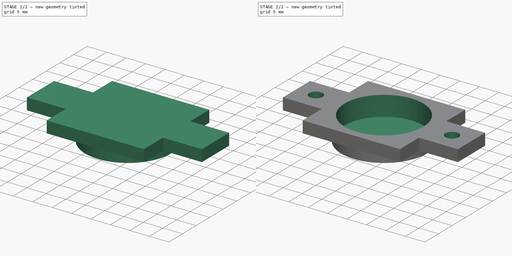
[diagram: build sequence overview — one tinted view per stage of 2, left to right]
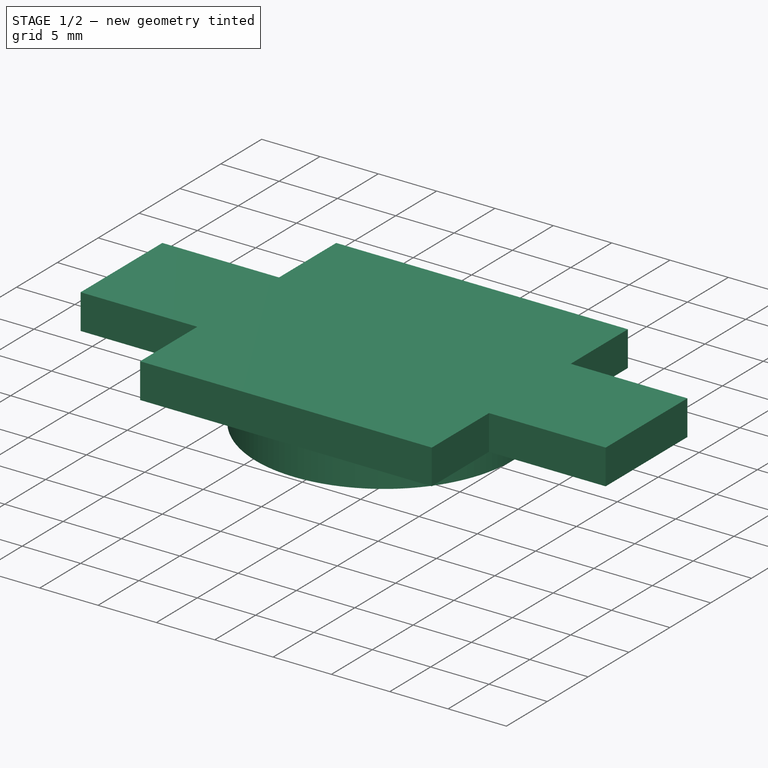
[diagram: stage 1 of 2 — iso view after this stage's code; geometry added in this stage tinted green]
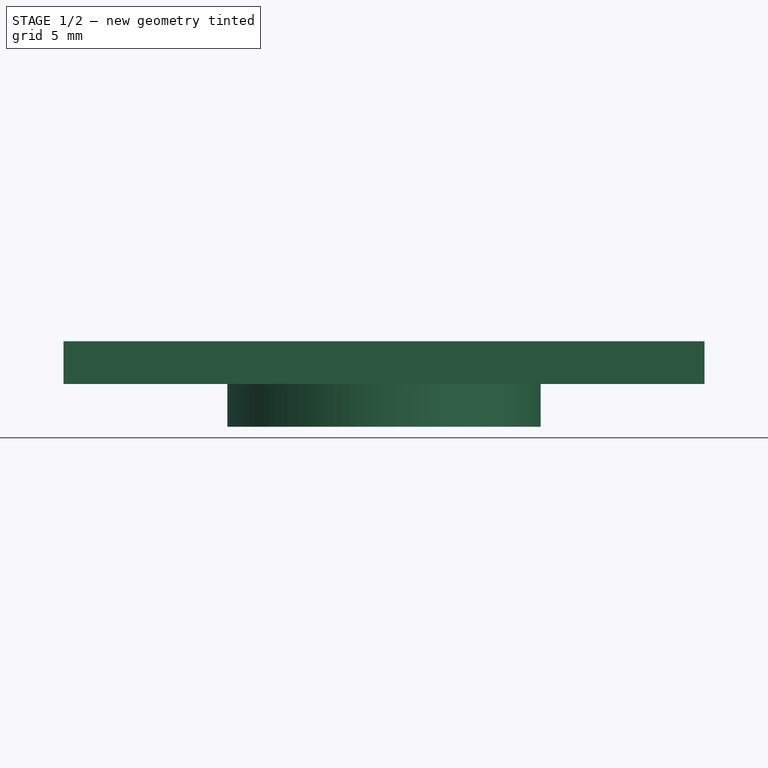
[diagram: stage 1 of 2 — front view after this stage's code; geometry added in this stage tinted green]
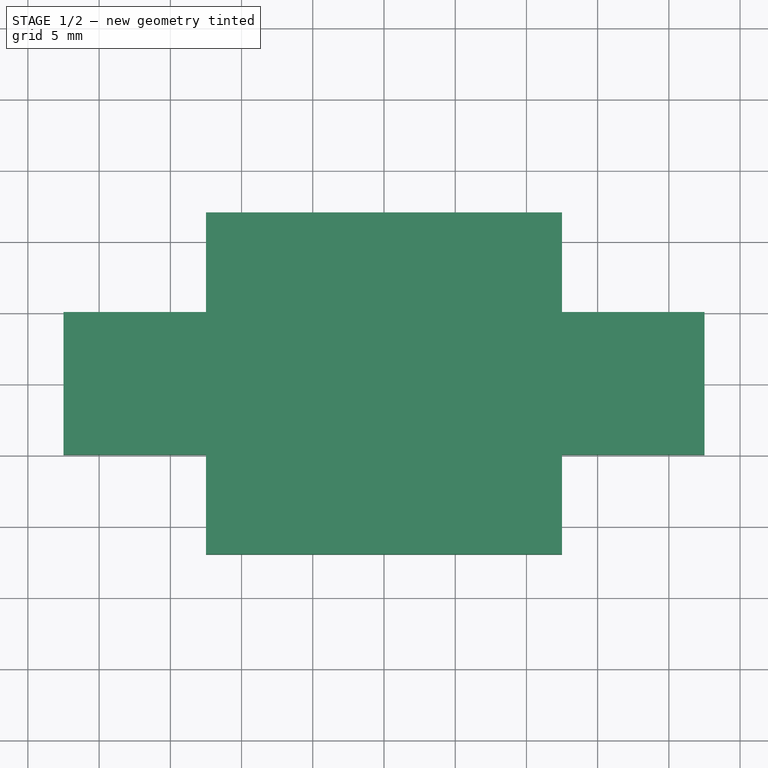
[diagram: stage 1 of 2 — top view after this stage's code; geometry added in this stage tinted green]
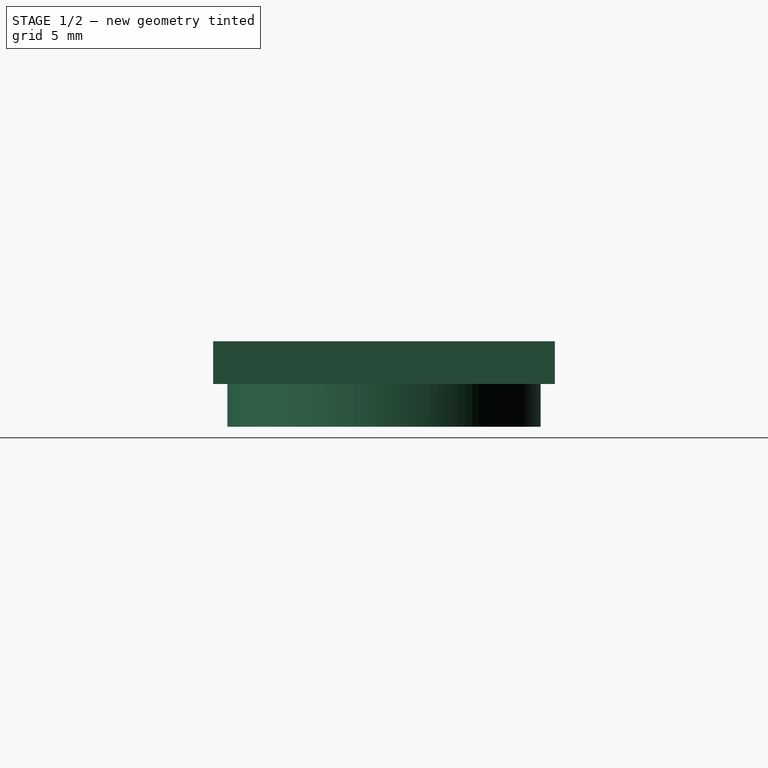
[diagram: stage 1 of 2 — right view after this stage's code; geometry added in this stage tinted green]
FCSTD DOCUMENT  (FreeCAD 0.18.4R)
Label: magnet_support_main_arm
License: All rights reserved
LicenseURL: http://en.wikipedia.org/wiki/All_rights_reserved
objects: Sketcher::SketchObject×4, PartDesign::Pad×2, PartDesign::Pocket×2, PartDesign::Body×1
note: 13 computed .brp shape members not serialized (recipe doc carries the construction recipe); baked Part::Feature solids carry a one-line shape summary decoded from their .brp

FEATURE [Sketcher::SketchObject] Sketch
  MapMode = 5
  Support = -> [XY_Plane]
  sketch-geometry (12):
    g0: LineSegment StartX=-12.5 StartY=-5 StartZ=0 EndX=-22.5 EndY=-5 EndZ=0
    g1: LineSegment StartX=-22.5 StartY=-5 StartZ=0 EndX=-22.5 EndY=5 EndZ=0
    g2: LineSegment StartX=-22.5 StartY=5 StartZ=0 EndX=-12.5 EndY=5 EndZ=0
    g3: LineSegment StartX=-12.5 StartY=5 StartZ=0 EndX=-12.5 EndY=12 EndZ=0
    g4: LineSegment StartX=-12.5 StartY=12 StartZ=0 EndX=12.5 EndY=12 EndZ=0
    g5: LineSegment StartX=12.5 StartY=12 StartZ=0 EndX=12.5 EndY=5 EndZ=0
    g6: LineSegment StartX=12.5 StartY=5 StartZ=0 EndX=22.5 EndY=5 EndZ=0
    g7: LineSegment StartX=22.5 StartY=5 StartZ=0 EndX=22.5 EndY=-5 EndZ=0
    g8: LineSegment StartX=22.5 StartY=-5 StartZ=0 EndX=12.5 EndY=-5 EndZ=0
    g9: LineSegment StartX=12.5 StartY=-5 StartZ=0 EndX=12.5 EndY=-12 EndZ=0
    g10: LineSegment StartX=12.5 StartY=-12 StartZ=0 EndX=-12.5 EndY=-12 EndZ=0
    g11: LineSegment StartX=-12.5 StartY=-12 StartZ=0 EndX=-12.5 EndY=-5 EndZ=0
  constraints (33):
    c: Horizontal(g0)
    c: Coincident(g0,g1)
    c: Coincident(g1,g2)
    c: Coincident(g2,g3)
    c: Vertical(g3)
    c: Coincident(g3,g4)
    c: Horizontal(g4)
    c: Coincident(g4,g5)
    c: Coincident(g5,g6)
    c: Horizontal(g6)
    c: Coincident(g6,g7)
    c: Vertical(g7)
    c: Coincident(g7,g8)
    c: Horizontal(g8)
    c: Coincident(g8,g9)
    c: Coincident(g9,g10)
    c: Horizontal(g10)
    c: Coincident(g10,g11)
    c: Coincident(g11,g0)
    c: Vertical(g11)
    c: Parallel(g2,g-1)
    c: DistanceY(g1,g1) = 10
    c: Symmetric(g1,g0,g-1)
    c: DistanceX(g2,g2) = 10
    c: Symmetric(g2,g5,g-2)
    c: Symmetric(g0,g8,g-2)
    c: Parallel(g11,g9)
    c: Vertical(g0,g2)
    c: Parallel(g5,g3)
    c: DistanceX(g6,g6) = 10
    c: DistanceX(g4,g4) = 25
    c: DistanceY(g3,g3) = 7
    c: DistanceY(g11,g11) = 7
FEATURE [PartDesign::Pad] Pad
  Length = 3
  Length2 = 100
  Profile = -> Sketch
  Type = 0
FEATURE [Sketcher::SketchObject] Sketch001
  MapMode = 5
  Placement = pos=(0,0,0) rot=(1,0,0;3.14159rad)
  Support = -> [Pad]
  sketch-geometry (1):
    g0: Circle CenterX=0 CenterY=0 CenterZ=0 NormalX=0 NormalY=0 NormalZ=1 AngleXU=0 Radius=11
  constraints (2):
    c: Coincident(g0,g-1)
    c: Radius(g0) = 11
FEATURE [PartDesign::Pad] Pad001
  BaseFeature = -> Pad
  Length = 3
  Length2 = 100
  Profile = -> Sketch001
  Type = 0
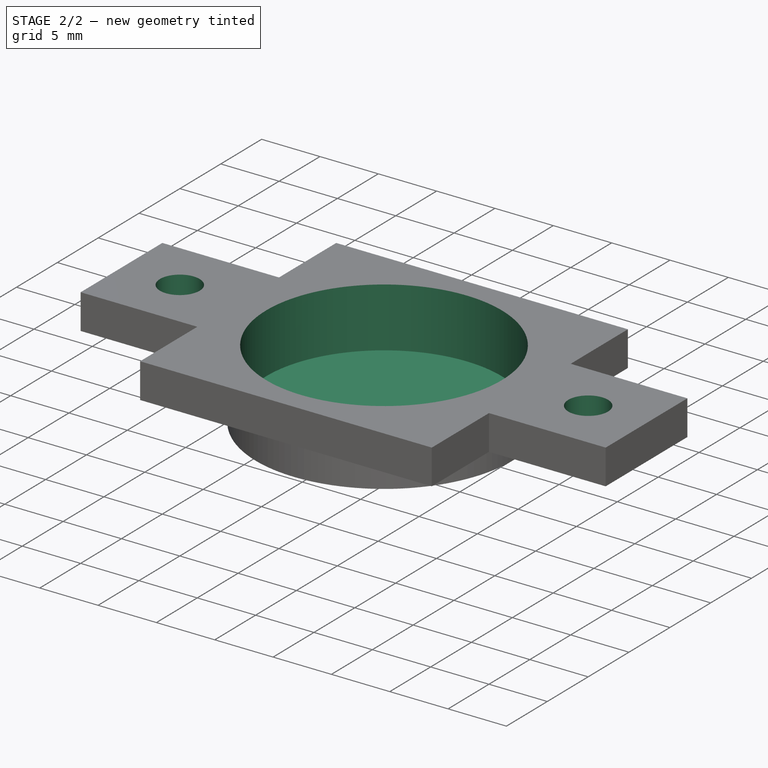
[diagram: stage 2 of 2 — iso view after this stage's code; geometry added in this stage tinted green]
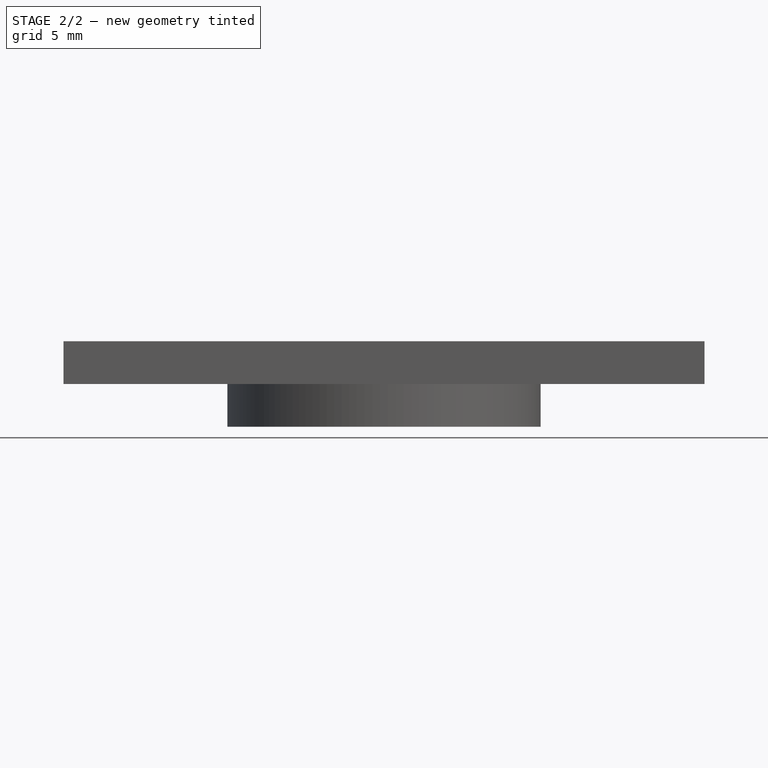
[diagram: stage 2 of 2 — front view after this stage's code; geometry added in this stage tinted green]
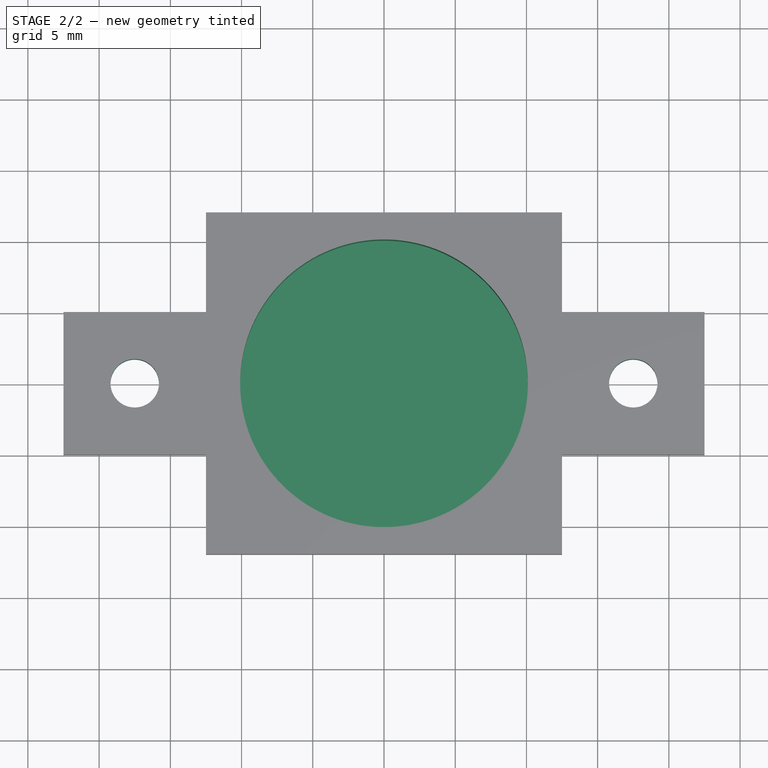
[diagram: stage 2 of 2 — top view after this stage's code; geometry added in this stage tinted green]
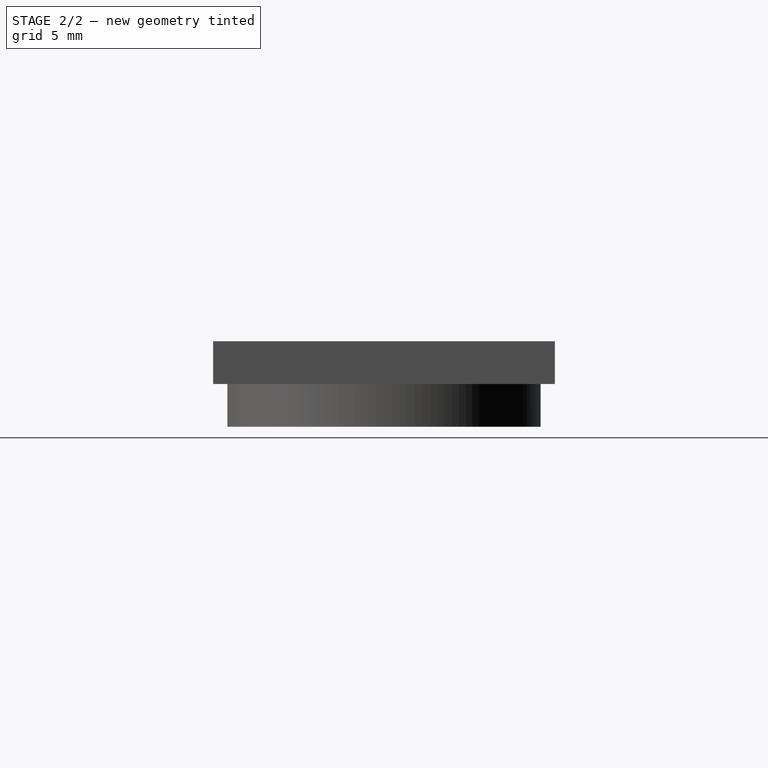
[diagram: stage 2 of 2 — right view after this stage's code; geometry added in this stage tinted green]
FEATURE [Sketcher::SketchObject] Sketch002
  MapMode = 5
  Placement = pos=(0,0,3) rot=(0,0,1;0rad)
  Support = -> [Pad001]
  sketch-geometry (1):
    g0: Circle CenterX=0 CenterY=0 CenterZ=0 NormalX=0 NormalY=0 NormalZ=1 AngleXU=0 Radius=10.1
  constraints (2):
    c: Coincident(g0,g-1)
    c: Radius(g0) = 10.1
FEATURE [PartDesign::Pocket] Pocket
  BaseFeature = -> Pad001
  Length = 5.1
  Length2 = 100
  Profile = -> Sketch002
  Type = 0
FEATURE [Sketcher::SketchObject] Sketch003
  ExternalGeometry = -> [Pocket]
  MapMode = 5
  Placement = pos=(0,0,3) rot=(0,0,1;0rad)
  Support = -> [Pocket]
  sketch-geometry (2):
    g0: Circle CenterX=-17.5 CenterY=0 CenterZ=0 NormalX=0 NormalY=0 NormalZ=1 AngleXU=0 Radius=1.7
    g1: Circle CenterX=17.5 CenterY=0 CenterZ=0 NormalX=0 NormalY=0 NormalZ=1 AngleXU=0 Radius=1.7
  constraints (6):
    c: PointOnObject(g0,g-1)
    c: PointOnObject(g1,g-1)
    c: Distance(g0,g-3) = 5
    c: Distance(g1,g-4) = 5
    c: Radius(g0) = 1.7
    c: Radius(g1) = 1.7
FEATURE [PartDesign::Pocket] Pocket001
  BaseFeature = -> Pocket
  Length = 5
  Length2 = 100
  Profile = -> Sketch003
  Type = 0
FEATURE [PartDesign::Body] Body
  Group = -> [Sketch,Pad,Sketch001,Pad001,Sketch002,Pocket,Sketch003,Pocket001]
  Origin = -> Origin
  Tip = -> Pocket001
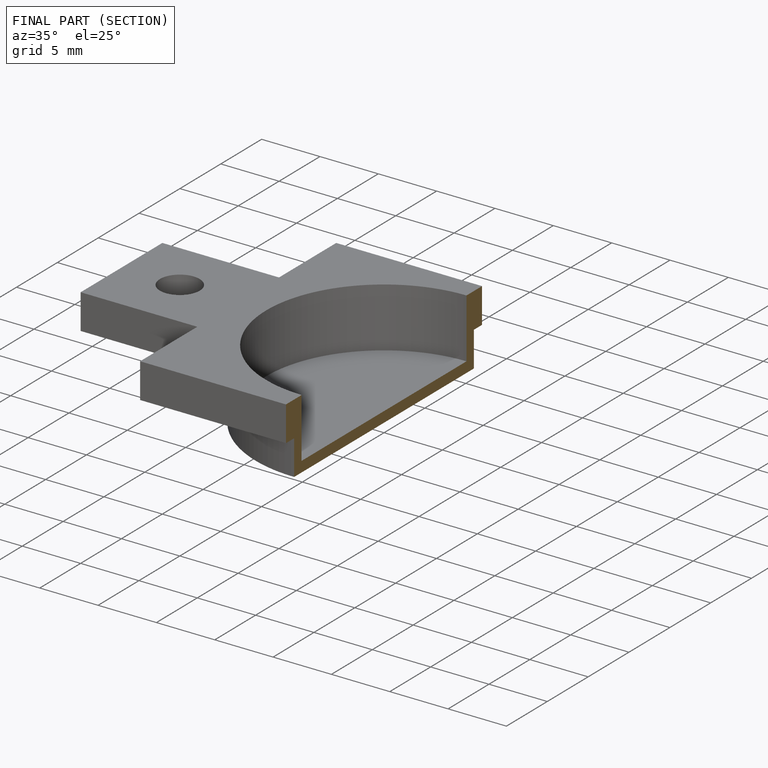
[diagram: finished part — half-section view (interior)]
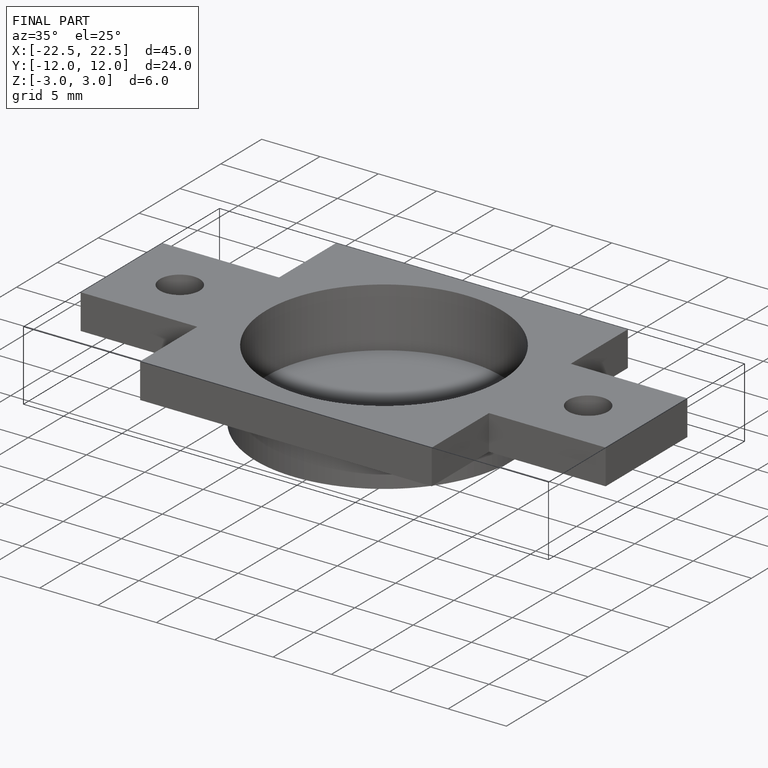
[diagram: finished part — iso view with bounding-box wireframe]
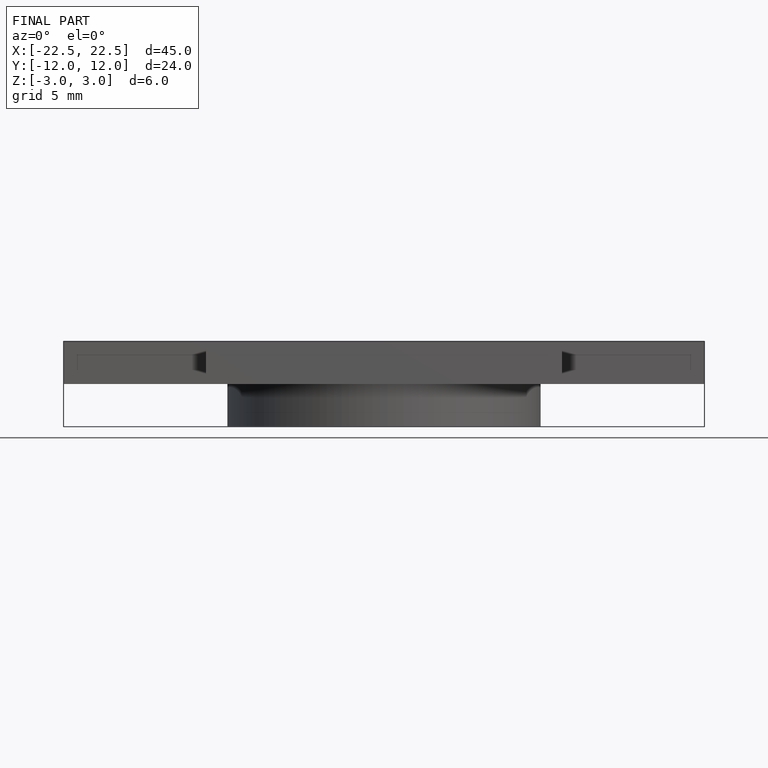
[diagram: finished part — front view with bounding-box wireframe]
